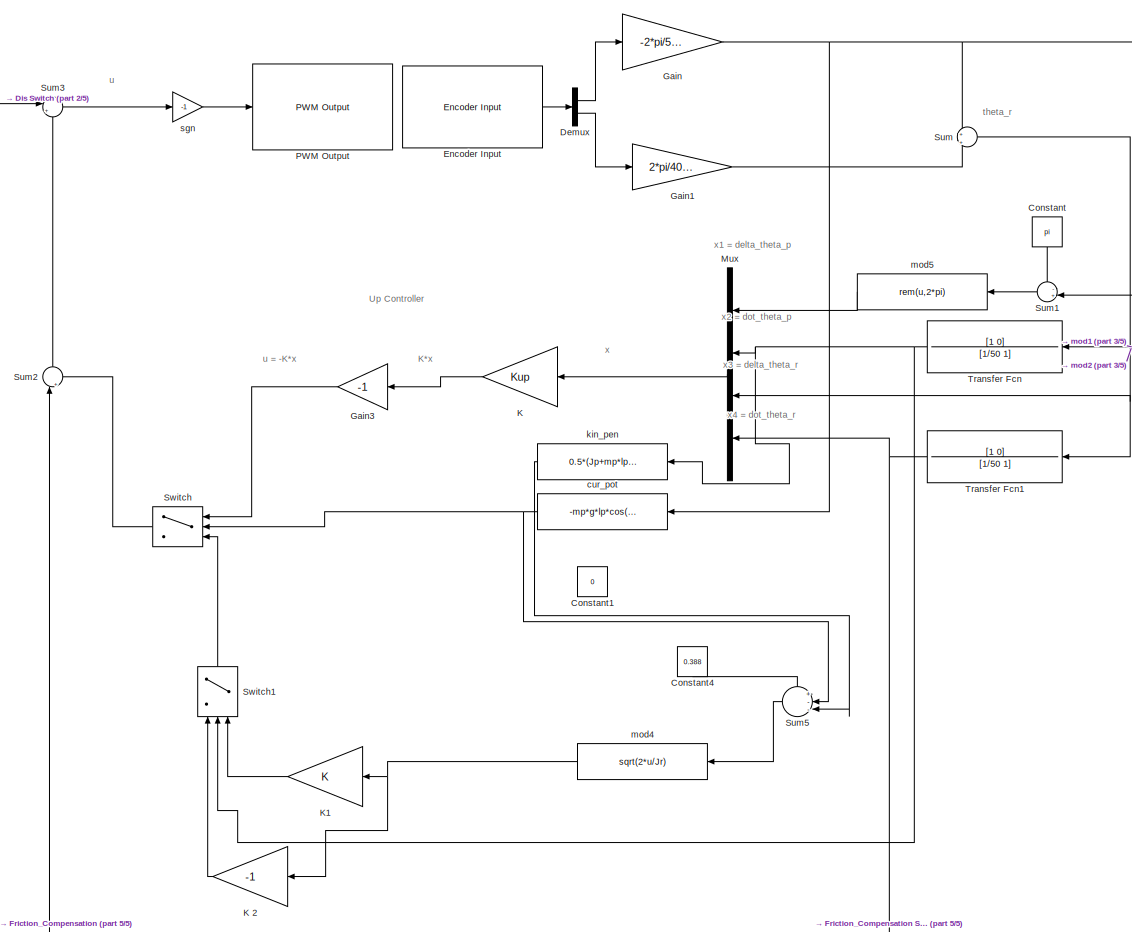
[diagram: root canvas - part 1/5, center side, full height]
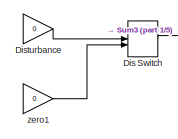
[diagram: root canvas - part 2/5, top left region]
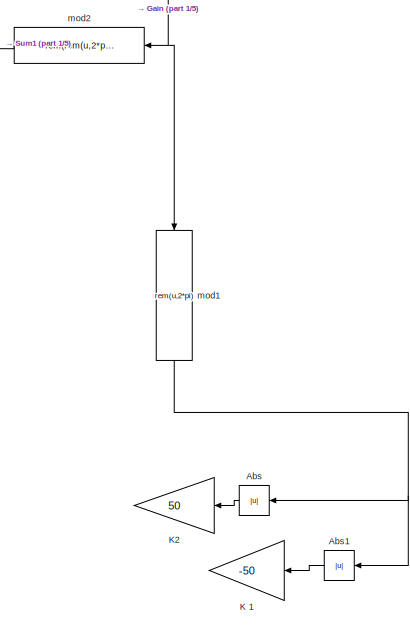
[diagram: root canvas - part 3/5, middle right region]
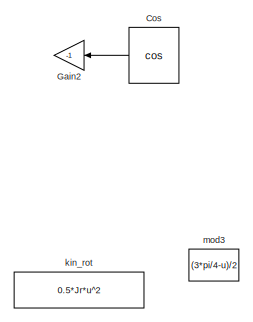
[diagram: root canvas - part 4/5, middle left region]
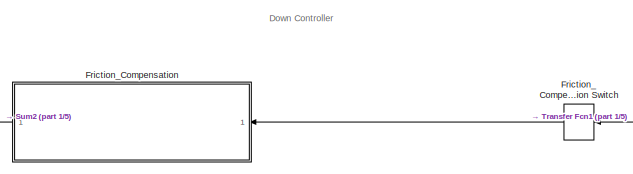
[diagram: root canvas - part 5/5, bottom center region]
MODEL slx_752437f277e2
KIND model
CONFIG AbsTol = auto
CONFIG EnableMultiTasking = on
CONFIG FixedStep = auto
CONFIG MaxStep = auto
CONFIG MinStep = auto
CONFIG RelTol = 1e-3
CONFIG SampleTimeConstraint = Unconstrained
CONFIG Solver = ode45
CONFIG SolverName = ode45
CONFIG StartTime = 0.0
CONFIG StopTime = 10.0
BLOCK [Abs] Abs
  SaturateOnIntegerOverflow = off
BLOCK [Abs] Abs1
  SaturateOnIntegerOverflow = off
BLOCK [Constant] Constant
  Value = pi
BLOCK [Constant] Constant1
  Value = 0
BLOCK [Constant] Constant4
  Value = 0.388
BLOCK [Trigonometry] Cos
  Operator = cos
  Ports = [1, 1]
BLOCK [Demux] Demux
  DisplayOption = bar
  Outputs = 2
  Ports = [1, 2]
BLOCK [ManualSwitch] Dis Switch
  CurrentSetting = 0
BLOCK [Gain] Disturbance
  Gain = 0
  OutDataTypeStr = Inherit: Inherit via internal rule
  ParamDataTypeStr = Inherit: Inherit via internal rule
  SaturateOnIntegerOverflow = off
BLOCK [Reference] Encoder Input  REF=c6xlib/Encoder Input
  Ports = [0, 1]
  SourceBlock = c6xlib/Encoder Input
  SourceType = Encoder Input Module
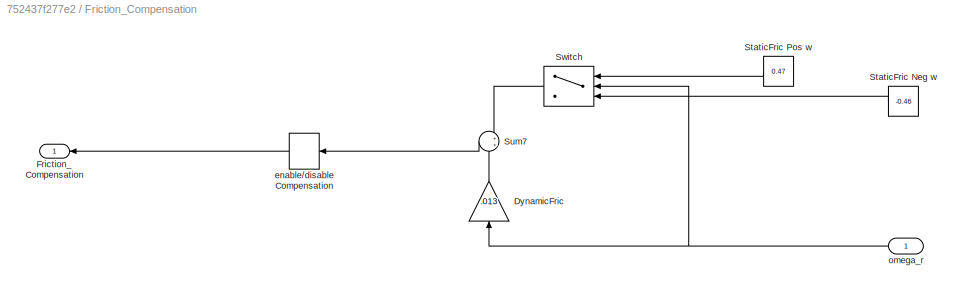
BLOCK [SubSystem] Friction_Compensation
  Ports = [1, 1]
  RequestExecContextInheritance = off
  Variant = off
BLOCK [ManualSwitch] Friction_Compensation Switch
BLOCK [Gain] Friction_Compensation/DynamicFric
  Gain = .013
  OutDataTypeStr = Inherit: Inherit via internal rule
  ParamDataTypeStr = Inherit: Inherit via internal rule
  SaturateOnIntegerOverflow = off
BLOCK [Outport] Friction_Compensation/Friction_Compensation
  IconDisplay = Port number
BLOCK [Constant] Friction_Compensation/StaticFric Neg w 
  Value = -0.46
BLOCK [Constant] Friction_Compensation/StaticFric Pos w
  Value = 0.47
BLOCK [Sum] Friction_Compensation/Sum7
  IconShape = round
  InputSameDT = off
  OutDataTypeStr = Inherit: Inherit via internal rule
  Ports = [2, 1]
  SaturateOnIntegerOverflow = off
BLOCK [Switch] Friction_Compensation/Switch
  Criteria = u2 > Threshold
  InputSameDT = off
  SaturateOnIntegerOverflow = off
BLOCK [ManualSwitch] Friction_Compensation/enable//disable Compensation
BLOCK [Inport] Friction_Compensation/omega_r
  IconDisplay = Port number
BLOCK [Gain] Gain
  Gain = -2*pi/5000
  OutDataTypeStr = Inherit: Inherit via internal rule
  ParamDataTypeStr = Inherit: Inherit via internal rule
  SaturateOnIntegerOverflow = off
BLOCK [Gain] Gain1
  Gain = 2*pi/4000
  OutDataTypeStr = Inherit: Inherit via internal rule
  ParamDataTypeStr = Inherit: Inherit via internal rule
  SaturateOnIntegerOverflow = off
BLOCK [Gain] Gain2
  Gain = -1
  OutDataTypeStr = Inherit: Inherit via internal rule
  ParamDataTypeStr = Inherit: Inherit via internal rule
  SaturateOnIntegerOverflow = off
BLOCK [Gain] Gain3
  Gain = -1
  OutDataTypeStr = Inherit: Inherit via internal rule
  ParamDataTypeStr = Inherit: Inherit via internal rule
  SaturateOnIntegerOverflow = off
BLOCK [Gain] K 
  Gain = Kup
  Multiplication = Matrix(K*u)
  OutDataTypeStr = Inherit: Inherit via internal rule
  ParamDataTypeStr = Inherit: Inherit via internal rule
  SaturateOnIntegerOverflow = off
BLOCK [Gain] K 1
  Gain = -50
  OutDataTypeStr = Inherit: Inherit via internal rule
  ParamDataTypeStr = Inherit: Inherit via internal rule
  SaturateOnIntegerOverflow = off
BLOCK [Gain] K 2
  Gain = -1
  OutDataTypeStr = Inherit: Inherit via internal rule
  ParamDataTypeStr = Inherit: Inherit via internal rule
  SaturateOnIntegerOverflow = off
BLOCK [Gain] K1
  OutDataTypeStr = Inherit: Inherit via internal rule
  ParamDataTypeStr = Inherit: Inherit via internal rule
  SaturateOnIntegerOverflow = off
BLOCK [Gain] K2
  Gain = 50
  OutDataTypeStr = Inherit: Inherit via internal rule
  ParamDataTypeStr = Inherit: Inherit via internal rule
  SaturateOnIntegerOverflow = off
BLOCK [Mux] Mux
  DisplayOption = bar
  Ports = [4, 1]
BLOCK [Reference] PWM Output  REF=c6xlib/PWM Output
  Ports = [1]
  SourceBlock = c6xlib/PWM Output
  SourceType = PWM Output Module
BLOCK [Sum] Sum
  IconShape = round
  InputSameDT = off
  Inputs = +|+
  OutDataTypeStr = Inherit: Inherit via internal rule
  Ports = [2, 1]
  SaturateOnIntegerOverflow = off
BLOCK [Sum] Sum1
  IconShape = round
  InputSameDT = off
  Inputs = -+|
  OutDataTypeStr = Inherit: Inherit via internal rule
  Ports = [2, 1]
  SaturateOnIntegerOverflow = off
BLOCK [Sum] Sum2
  IconShape = round
  InputSameDT = off
  Inputs = |++
  OutDataTypeStr = Inherit: Inherit via internal rule
  Ports = [2, 1]
  SaturateOnIntegerOverflow = off
BLOCK [Sum] Sum3
  IconShape = round
  InputSameDT = off
  Inputs = |++
  OutDataTypeStr = Inherit: Inherit via internal rule
  Ports = [2, 1]
  SaturateOnIntegerOverflow = off
BLOCK [Sum] Sum5
  IconShape = round
  InputSameDT = off
  Inputs = +--|
  OutDataTypeStr = Inherit: Inherit via internal rule
  Ports = [3, 1]
  SaturateOnIntegerOverflow = off
BLOCK [Switch] Switch
  Criteria = u2 > Threshold
  InputSameDT = off
  SaturateOnIntegerOverflow = off
  Threshold = 0.30
BLOCK [Switch] Switch1
  Criteria = u2 > Threshold
  InputSameDT = off
  SaturateOnIntegerOverflow = off
BLOCK [TransferFcn] Transfer Fcn
  Denominator = [1/50 1]
  Numerator = [1 0]
BLOCK [TransferFcn] Transfer Fcn1
  Denominator = [1/50 1]
  Numerator = [1 0]
BLOCK [Fcn] cur_pot
  Expr = -mp*g*lp*cos(u)- mr*g*lr*cos(u)
BLOCK [Fcn] kin_pen
  Expr = 0.5*(Jp+mp*lp^2+mr*lr^2)*u^2
BLOCK [Fcn] kin_rot
  Expr = 0.5*Jr*u^2
BLOCK [Fcn] mod1
  Expr = rem(u,2*pi)
BLOCK [Fcn] mod2
  Expr = rem(rem(u,2*pi)+2*pi,2*pi)
BLOCK [Fcn] mod3
  Expr = (3*pi/4-u)/2
BLOCK [Fcn] mod4
  Expr = sqrt(2*u/Jr)
BLOCK [Fcn] mod5
  Expr = rem(u,2*pi)
BLOCK [Gain] sgn
  Gain = -1
  OutDataTypeStr = Inherit: Inherit via internal rule
  ParamDataTypeStr = Inherit: Inherit via internal rule
  SaturateOnIntegerOverflow = off
BLOCK [Gain] zero1
  Gain = 0
  OutDataTypeStr = Inherit: Inherit via internal rule
  ParamDataTypeStr = Inherit: Inherit via internal rule
  SaturateOnIntegerOverflow = off
ANNOTATION (root): Down Controller
ANNOTATION (root): K*x
ANNOTATION (root): Up Controller
ANNOTATION (root): theta_r
ANNOTATION (root): u
ANNOTATION (root): u = -K*x
ANNOTATION (root): x
ANNOTATION (root): x1 = delta_theta_p
ANNOTATION (root): x2 = dot_theta_p
ANNOTATION (root): x3 = delta_theta_r
ANNOTATION (root): x4 = dot_theta_r
LINE Abs1:1 -> K 1:1
LINE Abs:1 -> K2:1
LINE Constant4:1 -> Sum5:1
LINE Constant:1 -> Sum1:1
LINE Cos:1 -> Gain2:1
LINE Demux:1 -> Gain:1
LINE Demux:2 -> Gain1:1
LINE Dis Switch:1 -> Sum3:1
LINE Disturbance:1 -> Dis Switch:1
LINE Encoder Input:1 -> Demux:1
LINE Friction_Compensation Switch:1 -> Friction_Compensation:1
LINE Friction_Compensation/DynamicFric:1 -> Friction_Compensation/Sum7:2
LINE Friction_Compensation/StaticFric Neg w :1 -> Friction_Compensation/Switch:3
LINE Friction_Compensation/StaticFric Pos w:1 -> Friction_Compensation/Switch:1
LINE Friction_Compensation/Sum7:1 -> Friction_Compensation/enable//disable Compensation:1
LINE Friction_Compensation/Switch:1 -> Friction_Compensation/Sum7:1
LINE Friction_Compensation/enable//disable Compensation:1 -> Friction_Compensation/Friction_Compensation:1
NET Friction_Compensation/omega_r:1 -> Friction_Compensation/DynamicFric:1, Friction_Compensation/Switch:2
LINE Friction_Compensation:1 -> Sum2:1
LINE Gain1:1 -> Sum:2
LINE Gain3:1 -> Switch:1
NET Gain:1 -> Sum:1, Transfer Fcn:1, cur_pot:1, mod1:1, mod2:1
LINE K 2:1 -> Switch1:1
LINE K :1 -> Gain3:1
LINE K1:1 -> Switch1:3
LINE Mux:1 -> K :1
LINE Sum1:1 -> mod5:1
LINE Sum2:1 -> Sum3:2
LINE Sum3:1 -> sgn:1
LINE Sum5:1 -> mod4:1
NET Sum:1 -> Mux:3, Transfer Fcn1:1
LINE Switch1:1 -> Switch:3
LINE Switch:1 -> Sum2:2
NET Transfer Fcn1:1 -> Friction_Compensation Switch:1, Mux:4
NET Transfer Fcn:1 -> Mux:2, Switch1:2, kin_pen:1
NET cur_pot:1 -> Sum5:2, Switch:2
LINE kin_pen:1 -> Sum5:3
NET mod1:1 -> Abs1:1, Abs:1
LINE mod2:1 -> Sum1:2
NET mod4:1 -> K 2:1, K1:1
LINE mod5:1 -> Mux:1
LINE sgn:1 -> PWM Output:1
LINE zero1:1 -> Dis Switch:2
note: NET lines group one-source signal fan-out (src -> all destinations, sorted); 1:1 wires keep LINE
